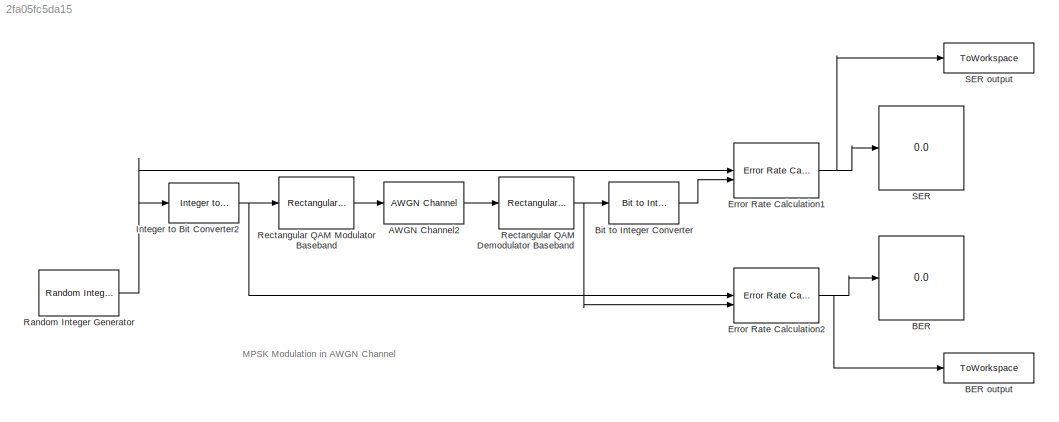
MODEL slx_2fa05fc5da15
KIND model
CONFIG AbsTol = auto
CONFIG EnableMultiTasking = off
CONFIG FixedStep = auto
CONFIG MaxStep = auto
CONFIG MinStep = auto
CONFIG RelTol = 1e-3
CONFIG SampleTimeConstraint = Unconstrained
CONFIG SolverName = VariableStepAuto
CONFIG StartTime = 0.0
CONFIG StopTime = inf
BLOCK [Reference] AWGN Channel2  REF=commchan3/AWGN
Channel
  SourceBlock = commchan3/AWGN\nChannel
  SourceType = AWGN Channel
  UserDataPersistent = on
BLOCK [Display] BER
  Decimation = 1
BLOCK [ToWorkspace] BER output
  FixptAsFi = on
  MaxDataPoints = inf
  SampleTime = -1
  Save2DSignal = 2-D array (concatenate along first dimension)
  VariableName = BERsim
BLOCK [Reference] Bit to Integer Converter  REF=simulink/Logic and Bit
Operations/Bit to Integer
Converter
  SourceBlock = simulink/Logic and Bit\nOperations/Bit to Integer\nConverter
  SourceType = Bit to Integer Converter
BLOCK [Reference] Error Rate Calculation1  REF=commsink2/Error Rate
Calculation
  SourceBlock = commsink2/Error Rate\nCalculation
  SourceType = Error Rate Calculation
BLOCK [Reference] Error Rate Calculation2  REF=commsink2/Error Rate
Calculation
  SourceBlock = commsink2/Error Rate\nCalculation
  SourceType = Error Rate Calculation
BLOCK [Reference] Integer to Bit Converter2  REF=simulink/Logic and Bit
Operations/Integer to Bit
Converter
  NameLocation = top
  SourceBlock = simulink/Logic and Bit\nOperations/Integer to Bit\nConverter
  SourceType = Integer to Bit Converter
BLOCK [Reference] Random Integer Generator  REF=commrandsrc3/Random Integer
Generator
  SourceBlock = commrandsrc3/Random Integer\nGenerator
  SourceType = Random Integer Generator
BLOCK [Reference] Rectangular QAM Demodulator Baseband  REF=commdigbbndam3/Rectangular QAM
Demodulator
Baseband
  LibrarySourceBlock = commhdldigbbndam/Rectangular QAM\nDemodulator\nBaseband
  SourceBlock = commdigbbndam3/Rectangular QAM\nDemodulator\nBaseband
  SourceType = Rectangular QAM Demodulator Baseband
BLOCK [Reference] Rectangular QAM Modulator Baseband  REF=commdigbbndam3/Rectangular QAM
Modulator
Baseband
  LibrarySourceBlock = commhdldigbbndam/Rectangular QAM\nModulator\nBaseband
  SourceBlock = commdigbbndam3/Rectangular QAM\nModulator\nBaseband
  SourceType = Rectangular QAM Modulator Baseband
BLOCK [Display] SER
  Decimation = 1
BLOCK [ToWorkspace] SER output
  FixptAsFi = on
  MaxDataPoints = inf
  SampleTime = -1
  Save2DSignal = 2-D array (concatenate along first dimension)
  VariableName = SERsim
ANNOTATION (root): MPSK Modulation in AWGN Channel
LINE AWGN Channel2:1 -> Rectangular QAM Demodulator Baseband:1
LINE Bit to Integer Converter:1 -> Error Rate Calculation1:2
NET Error Rate Calculation1:1 -> SER output:1, SER:1
NET Error Rate Calculation2:1 -> BER output:1, BER:1
NET Integer to Bit Converter2:1 -> Error Rate Calculation2:1, Rectangular QAM Modulator Baseband:1
NET Random Integer Generator:1 -> Error Rate Calculation1:1, Integer to Bit Converter2:1
NET Rectangular QAM Demodulator Baseband:1 -> Bit to Integer Converter:1, Error Rate Calculation2:2
LINE Rectangular QAM Modulator Baseband:1 -> AWGN Channel2:1
note: NET lines group one-source signal fan-out (src -> all destinations, sorted); 1:1 wires keep LINE
